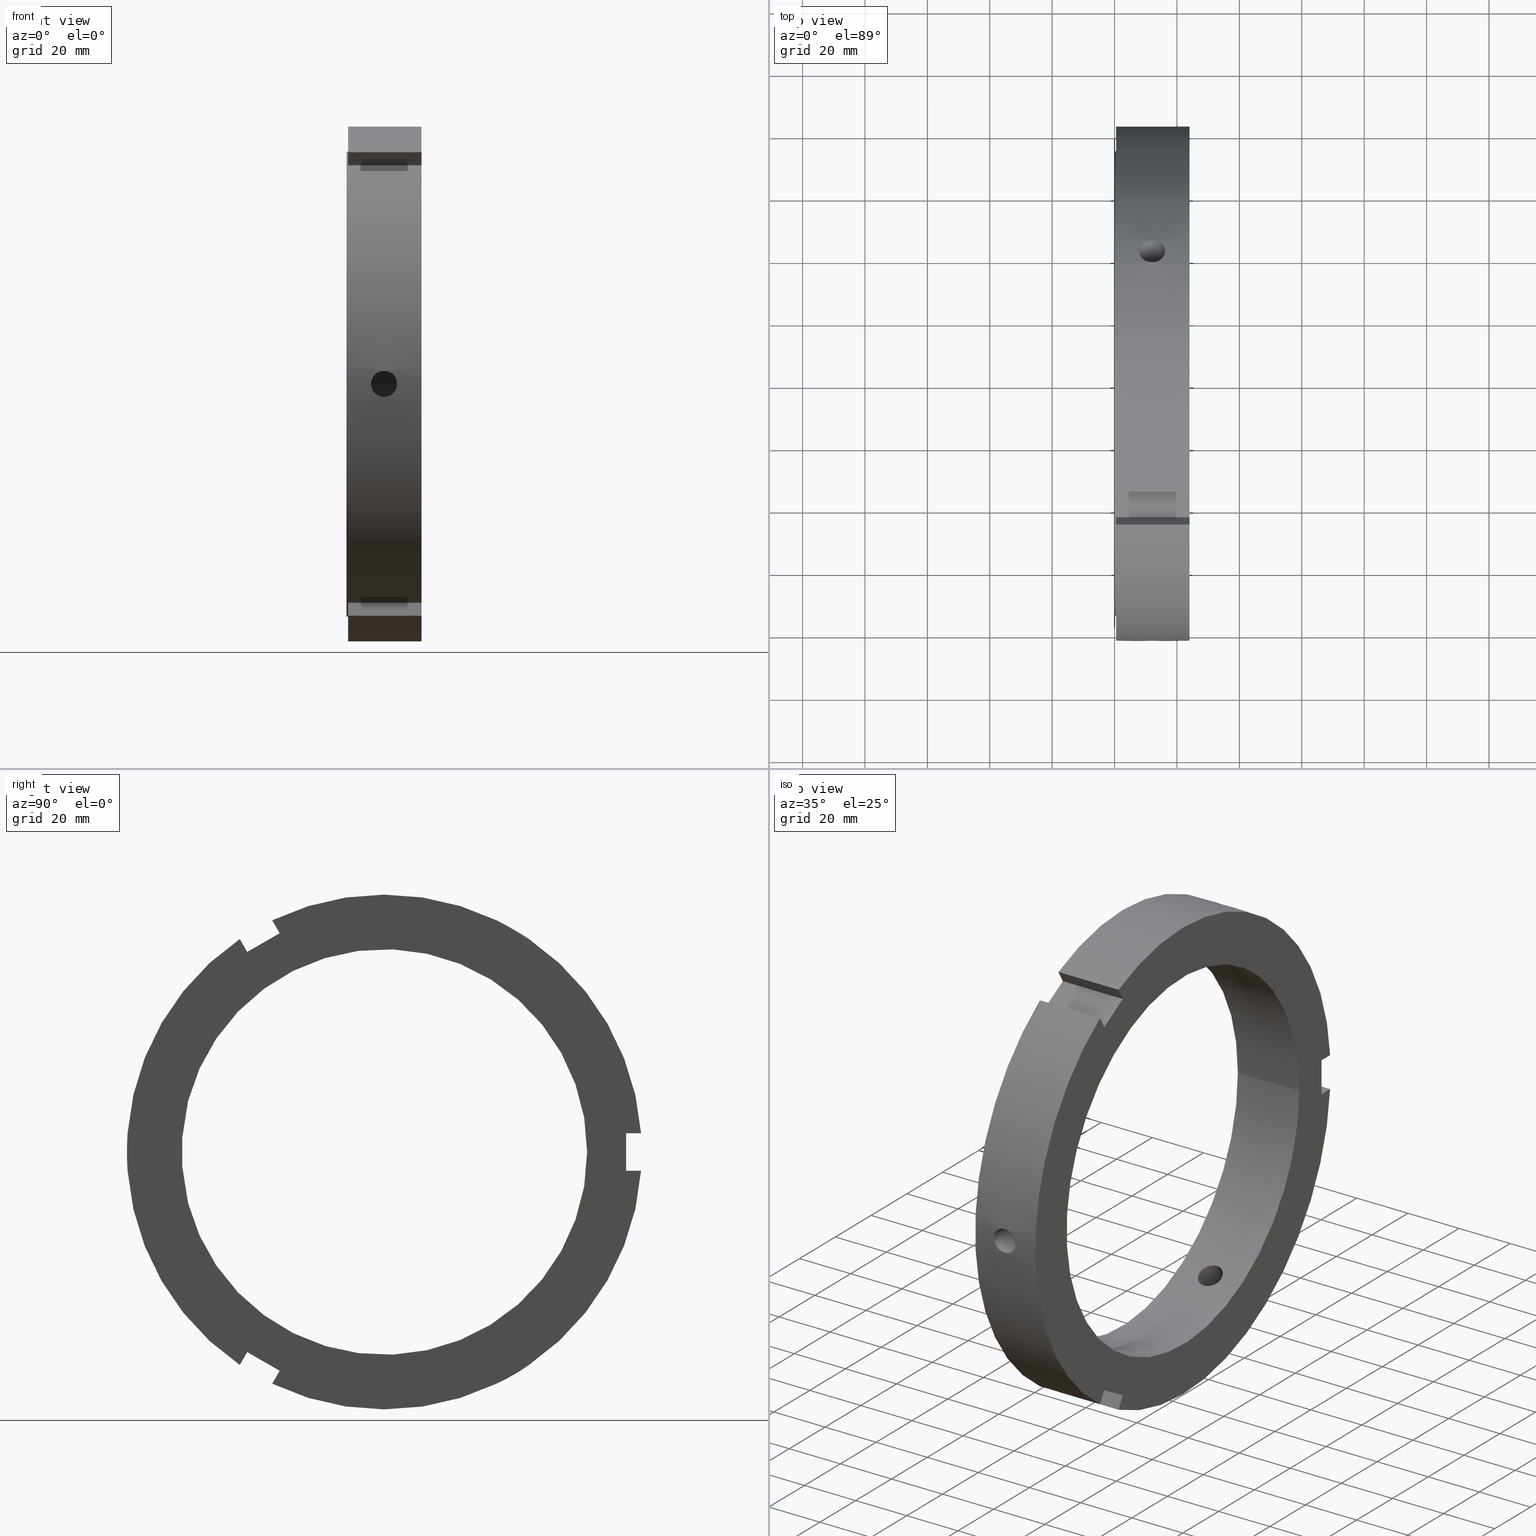
[diagram: canonical four-view strip — front | top / right | iso, engineering-drawing reading convention]
A machine part, canonical four-view strip (front | top / right | iso — engineering-drawing reading convention). The complete STEP part file that produces these views, byte-faithful:
ISO-10303-21;
HEADER;
/****************************************************************
 * Generated by software with PDE/Lib inside                    *
 * PDElib Version v51a, created Thu 01/14/2010                  *
 * ITI Transcendata (http://www.transcendata.com/)              *
 ****************************************************************/
FILE_DESCRIPTION((''),'2;1');
FILE_NAME('\\\\CAD-SVN\\cad-svn\\\X2\628088538AB2\X0\\\FKD\X2\88FD4F5C\X0\SP\\\X2\90E854C130E930A430D630E930EA\X0\\\HP \X2\30A230C330D730C730FC30C87528\X0\CAD\X2\30C730FC30BFFF0867007D42FF09\X0\\\3D data\\ZMT\\FKD ZMT130.stp','2014-07-16T14:51:30',('fkd-ct1n'),(''),'Autodesk Inventor 2011','Autodesk Inventor 2011','');
FILE_SCHEMA(('AUTOMOTIVE_DESIGN { 1 0 10303 214 1 1 1 1 }'));
ENDSEC;
DATA;
#5=APPLICATION_CONTEXT('automotive design');
#6=APPLICATION_PROTOCOL_DEFINITION('International Standard','automotive_design',2001,#5);
#7=PRODUCT_CONTEXT('',#5,'mechanical');
#8=PRODUCT('FKD ZMT130','FKD ZMT130',$,(#7));
#9=PRODUCT_RELATED_PRODUCT_CATEGORY('part',$,(#8));
#10=PRODUCT_DEFINITION_FORMATION('',$,#8);
#11=PRODUCT_DEFINITION_CONTEXT('part definition',#5,'design');
#12=PRODUCT_DEFINITION('',$,#10,#11);
#18=(NAMED_UNIT(*)PLANE_ANGLE_UNIT()SI_UNIT($,.RADIAN.));
#19=DIMENSIONAL_EXPONENTS(0.0,0.0,0.0,0.0,0.0,0.0,0.0);
#20=PLANE_ANGLE_MEASURE_WITH_UNIT(PLANE_ANGLE_MEASURE(0.017453292500000),#18);
#24=(CONVERSION_BASED_UNIT('DEGREE',#20)NAMED_UNIT(#19)PLANE_ANGLE_UNIT());
#28=(NAMED_UNIT(*)SI_UNIT($,.STERADIAN.)SOLID_ANGLE_UNIT());
#32=(LENGTH_UNIT()NAMED_UNIT(*)SI_UNIT(.MILLI.,.METRE.));
#34=UNCERTAINTY_MEASURE_WITH_UNIT(LENGTH_MEASURE(0.010000000000000),#32,'DISTANCE_ACCURACY_VALUE','');
#36=(GEOMETRIC_REPRESENTATION_CONTEXT(3)GLOBAL_UNCERTAINTY_ASSIGNED_CONTEXT((#34))GLOBAL_UNIT_ASSIGNED_CONTEXT((#24,#28,#32))REPRESENTATION_CONTEXT('None','None'));
#37=AXIS2_PLACEMENT_3D('',#38,#39,#40);
#38=CARTESIAN_POINT('',(0.0,0.0,0.0));
#39=DIRECTION('',(0.0,0.0,1.0));
#40=DIRECTION('',(1.0,0.0,0.0));
#41=SHAPE_REPRESENTATION('',(#37),#36);
#42=PRODUCT_DEFINITION_SHAPE('','',#12);
#43=SHAPE_DEFINITION_REPRESENTATION(#42,#41);
#49=(NAMED_UNIT(*)PLANE_ANGLE_UNIT()SI_UNIT($,.RADIAN.));
#50=DIMENSIONAL_EXPONENTS(0.0,0.0,0.0,0.0,0.0,0.0,0.0);
#51=PLANE_ANGLE_MEASURE_WITH_UNIT(PLANE_ANGLE_MEASURE(0.017453292500000),#49);
#55=(CONVERSION_BASED_UNIT('DEGREE',#51)NAMED_UNIT(#50)PLANE_ANGLE_UNIT());
#59=(NAMED_UNIT(*)SI_UNIT($,.STERADIAN.)SOLID_ANGLE_UNIT());
#63=(LENGTH_UNIT()NAMED_UNIT(*)SI_UNIT(.MILLI.,.METRE.));
#65=UNCERTAINTY_MEASURE_WITH_UNIT(LENGTH_MEASURE(0.000001000000000),#63,'DISTANCE_ACCURACY_VALUE','');
#67=(GEOMETRIC_REPRESENTATION_CONTEXT(3)GLOBAL_UNCERTAINTY_ASSIGNED_CONTEXT((#65))GLOBAL_UNIT_ASSIGNED_CONTEXT((#55,#59,#63))REPRESENTATION_CONTEXT('','3D'));
#68=CARTESIAN_POINT('',(23.999999999999986,-43.946152422706668,-64.116968793293978));
#69=DIRECTION('',(0.0,-0.866025403784438,0.500000000000001));
#70=DIRECTION('',(-1.0,0.0,0.0));
#71=AXIS2_PLACEMENT_3D('',#68,#69,#70);
#72=PLANE('',#71);
#73=CARTESIAN_POINT('',(0.499999999999976,-43.946152422706668,-64.116968793293978));
#74=VERTEX_POINT('',#73);
#75=CARTESIAN_POINT('',(0.499999999999976,-46.336916878414101,-68.257894299509005));
#76=VERTEX_POINT('',#75);
#77=CARTESIAN_POINT('',(0.499999999999976,-43.946152422706668,-64.116968793293992));
#78=DIRECTION('',(0.0,-0.500000000000002,-0.866025403784437));
#79=VECTOR('',#78,4.781528911414873);
#80=LINE('',#77,#79);
#81=EDGE_CURVE('',#74,#76,#80,.T.);
#82=ORIENTED_EDGE('',*,*,#81,.F.);
#83=CARTESIAN_POINT('',(23.999999999999986,-43.946152422706668,-64.116968793293978));
#84=VERTEX_POINT('',#83);
#85=CARTESIAN_POINT('',(23.999999999999986,-43.946152422706668,-64.116968793293978));
#86=DIRECTION('',(-1.0,0.0,0.0));
#87=VECTOR('',#86,23.500000000000011);
#88=LINE('',#85,#87);
#89=EDGE_CURVE('',#84,#74,#88,.T.);
#90=ORIENTED_EDGE('',*,*,#89,.F.);
#91=CARTESIAN_POINT('',(23.999999999999986,-46.336916878414101,-68.257894299509005));
#92=VERTEX_POINT('',#91);
#93=CARTESIAN_POINT('',(23.999999999999986,-46.336916878414115,-68.257894299509005));
#94=DIRECTION('',(0.0,0.500000000000000,0.866025403784439));
#95=VECTOR('',#94,4.781528911414866);
#96=LINE('',#93,#95);
#97=EDGE_CURVE('',#92,#84,#96,.T.);
#98=ORIENTED_EDGE('',*,*,#97,.F.);
#99=CARTESIAN_POINT('',(0.499999999999975,-46.336916878414094,-68.257894299508990));
#100=DIRECTION('',(1.0,0.0,0.0));
#101=VECTOR('',#100,23.500000000000011);
#102=LINE('',#99,#101);
#103=EDGE_CURVE('',#76,#92,#102,.T.);
#104=ORIENTED_EDGE('',*,*,#103,.F.);
#105=EDGE_LOOP('',(#82,#90,#98,#104));
#106=FACE_OUTER_BOUND('',#105,.T.);
#107=ADVANCED_FACE('',(#106),#72,.F.);
#108=CARTESIAN_POINT('',(23.999999999999986,-36.053847577293411,-74.447095812216176));
#109=DIRECTION('',(0.0,0.866025403784438,-0.500000000000001));
#110=DIRECTION('',(1.0,0.0,0.0));
#111=AXIS2_PLACEMENT_3D('',#108,#109,#110);
#112=PLANE('',#111);
#113=CARTESIAN_POINT('',(0.499999999999976,-35.944612033000844,-74.257894299508990));
#114=VERTEX_POINT('',#113);
#115=CARTESIAN_POINT('',(0.499999999999976,-33.553847577293411,-70.116968793293992));
#116=VERTEX_POINT('',#115);
#117=CARTESIAN_POINT('',(0.499999999999976,-35.944612033000851,-74.257894299509019));
#118=DIRECTION('',(0.0,0.500000000000000,0.866025403784438));
#119=VECTOR('',#118,4.781528911414850);
#120=LINE('',#117,#119);
#121=EDGE_CURVE('',#114,#116,#120,.T.);
#122=ORIENTED_EDGE('',*,*,#121,.F.);
#123=CARTESIAN_POINT('',(23.999999999999986,-35.944612033000844,-74.257894299508990));
#124=VERTEX_POINT('',#123);
#125=CARTESIAN_POINT('',(23.999999999999986,-35.944612033000830,-74.257894299508990));
#126=DIRECTION('',(-1.0,0.0,0.0));
#127=VECTOR('',#126,23.500000000000011);
#128=LINE('',#125,#127);
#129=EDGE_CURVE('',#124,#114,#128,.T.);
#130=ORIENTED_EDGE('',*,*,#129,.F.);
#131=CARTESIAN_POINT('',(23.999999999999986,-33.553847577293411,-70.116968793293992));
#132=VERTEX_POINT('',#131);
#133=CARTESIAN_POINT('',(23.999999999999986,-33.553847577293418,-70.116968793294006));
#134=DIRECTION('',(0.0,-0.500000000000001,-0.866025403784438));
#135=VECTOR('',#134,4.781528911414854);
#136=LINE('',#133,#135);
#137=EDGE_CURVE('',#132,#124,#136,.T.);
#138=ORIENTED_EDGE('',*,*,#137,.F.);
#139=CARTESIAN_POINT('',(23.999999999999986,-33.553847577293411,-70.116968793293992));
#140=DIRECTION('',(-1.0,0.0,0.0));
#141=VECTOR('',#140,23.500000000000011);
#142=LINE('',#139,#141);
#143=EDGE_CURVE('',#132,#116,#142,.T.);
#144=ORIENTED_EDGE('',*,*,#143,.T.);
#145=EDGE_LOOP('',(#122,#130,#138,#144));
#146=FACE_OUTER_BOUND('',#145,.T.);
#147=ADVANCED_FACE('',(#146),#112,.F.);
#148=CARTESIAN_POINT('',(23.999999999999986,-33.553847577293411,-70.116968793293992));
#149=DIRECTION('',(0.0,0.500000000000001,0.866025403784438));
#150=DIRECTION('',(0.0,-0.866025403784438,0.500000000000000));
#151=AXIS2_PLACEMENT_3D('',#148,#149,#150);
#152=PLANE('',#151);
#153=CARTESIAN_POINT('',(0.499999999999976,-33.553847577293432,-70.116968793294006));
#154=DIRECTION('',(0.0,-0.866025403784439,0.500000000000000));
#155=VECTOR('',#154,12.0);
#156=LINE('',#153,#155);
#157=EDGE_CURVE('',#116,#74,#156,.T.);
#158=ORIENTED_EDGE('',*,*,#157,.F.);
#159=ORIENTED_EDGE('',*,*,#143,.F.);
#160=CARTESIAN_POINT('',(23.999999999999986,-43.946152422706689,-64.116968793294006));
#161=DIRECTION('',(0.0,0.866025403784439,-0.500000000000000));
#162=VECTOR('',#161,12.0);
#163=LINE('',#160,#162);
#164=EDGE_CURVE('',#84,#132,#163,.T.);
#165=ORIENTED_EDGE('',*,*,#164,.F.);
#166=ORIENTED_EDGE('',*,*,#89,.T.);
#167=EDGE_LOOP('',(#158,#159,#165,#166));
#168=FACE_OUTER_BOUND('',#167,.T.);
#169=ADVANCED_FACE('',(#168),#152,.F.);
#170=CARTESIAN_POINT('',(11.999999999999984,117.211296672274240,203.015921057407670));
#171=DIRECTION('',(0.0,-0.500000000000001,-0.866025403784438));
#172=DIRECTION('',(-1.0,0.0,0.0));
#173=AXIS2_PLACEMENT_3D('',#170,#171,#172);
#174=CYLINDRICAL_SURFACE('',#173,4.188000000000000);
#175=CARTESIAN_POINT('',(11.999999999999984,44.823730578711157,69.260978747106350));
#176=VERTEX_POINT('',#175);
#177=CARTESIAN_POINT('',(11.999999999999984,44.823730578711121,69.260978747106350));
#178=CARTESIAN_POINT('',(12.525951644810846,44.823730578711121,69.260978747106350));
#179=CARTESIAN_POINT('',(13.086898726166433,44.735462369711897,69.318353854732237));
#180=CARTESIAN_POINT('',(14.118708632293300,44.375332131296972,69.549447681113207));
#181=CARTESIAN_POINT('',(14.589579118633827,44.103329934539879,69.722913668427026));
#182=CARTESIAN_POINT('',(15.333147197132220,43.472734998872212,70.117827357851780));
#183=CARTESIAN_POINT('',(15.655441065487318,43.072057589223803,70.365574775678738));
#184=CARTESIAN_POINT('',(16.082869968049618,42.188508749622009,70.898843347142503));
#185=CARTESIAN_POINT('',(16.187999999999981,41.705487383327515,71.184120048839560));
#186=CARTESIAN_POINT('',(16.187999999999988,40.794512616672513,71.710071575592764));
#187=CARTESIAN_POINT('',(16.082869968049621,40.305945062747782,71.985741998525967));
#188=CARTESIAN_POINT('',(15.655441065487326,39.402346513019424,72.484283453373493));
#189=CARTESIAN_POINT('',(15.333147197132224,38.987452250635101,72.707406559938079));
#190=CARTESIAN_POINT('',(14.589579118633829,38.330149495457178,73.056060949011723));
#191=CARTESIAN_POINT('',(14.118708632293306,38.043922445372289,73.204888767631644));
#192=CARTESIAN_POINT('',(13.086898726166442,37.663724201861150,73.401223789579433));
#193=CARTESIAN_POINT('',(12.525951644810846,37.569901796612655,73.448978747106310));
#194=CARTESIAN_POINT('',(11.474048355189122,37.569901796612655,73.448978747106310));
#195=CARTESIAN_POINT('',(10.913101273833526,37.663724201861150,73.401223789579433));
#196=CARTESIAN_POINT('',(9.881291367706663,38.043922445372289,73.204888767631644));
#197=CARTESIAN_POINT('',(9.410420881366141,38.330149495457178,73.056060949011723));
#198=CARTESIAN_POINT('',(8.666852802867744,38.987452250635101,72.707406559938079));
#199=CARTESIAN_POINT('',(8.344558934512644,39.402346513019424,72.484283453373493));
#200=CARTESIAN_POINT('',(7.917130031950346,40.305945062747782,71.985741998525967));
#201=CARTESIAN_POINT('',(7.811999999999982,40.794512616672513,71.710071575592764));
#202=CARTESIAN_POINT('',(7.811999999999985,41.705487383327515,71.184120048839560));
#203=CARTESIAN_POINT('',(7.917130031950349,42.188508749622009,70.898843347142503));
#204=CARTESIAN_POINT('',(8.344558934512648,43.072057589223803,70.365574775678738));
#205=CARTESIAN_POINT('',(8.666852802867751,43.472734998872212,70.117827357851780));
#206=CARTESIAN_POINT('',(9.410420881366143,44.103329934539879,69.722913668427026));
#207=CARTESIAN_POINT('',(9.881291367706670,44.375332131296972,69.549447681113207));
#208=CARTESIAN_POINT('',(10.913101273833535,44.735462369711897,69.318353854732237));
#209=CARTESIAN_POINT('',(11.474048355189119,44.823730578711114,69.260978747106350));
#210=CARTESIAN_POINT('',(11.999999999999982,44.823730578711114,69.260978747106350));
#211=B_SPLINE_CURVE_WITH_KNOTS('',3,(#177,#178,#179,#180,#181,#182,#183,#184,#185,#186,#187,#188,#189,#190,#191,#192,#193,#194,#195,#196,#197,#198,#199,#200,#201,#202,#203,#204,#205,#206,#207,#208,#209,#210),.UNSPECIFIED.,.T.,.U.,(4,2,2,2,2,2,2,2,2,2,2,2,2,2,2,2,4),(0.0,0.157785493443259,0.315570986886517,0.473356444912484,0.631141902938451,0.788927360964419,0.946712818990387,1.104498312433646,1.262283805876904,1.420069299320163,1.577854792763421,1.735640250789389,1.893425708815357,2.051211166841324,2.208996624867291,2.366782118310550,2.524567611753808),.UNSPECIFIED.);
#212=EDGE_CURVE('',#176,#176,#211,.T.);
#213=ORIENTED_EDGE('',*,*,#212,.F.);
#214=EDGE_LOOP('',(#213));
#215=FACE_OUTER_BOUND('',#214,.T.);
#216=CARTESIAN_POINT('',(11.999999999999984,36.059385218909412,54.080687288849219));
#217=VERTEX_POINT('',#216);
#218=CARTESIAN_POINT('',(11.999999999999986,36.059385218909398,54.080687288849234));
#219=CARTESIAN_POINT('',(11.473988907387904,36.059385218909398,54.080687288849234));
#220=CARTESIAN_POINT('',(10.913016296673286,35.971848282437129,54.139375422463999));
#221=CARTESIAN_POINT('',(9.881222806530774,35.614413618888193,54.375172482390006));
#222=CARTESIAN_POINT('',(9.410389551678808,35.344338833655357,54.551958718026079));
#223=CARTESIAN_POINT('',(8.666884265975028,34.717398813313665,54.953077320903560));
#224=CARTESIAN_POINT('',(8.344599357334994,34.318668972562861,55.204123682125328));
#225=CARTESIAN_POINT('',(7.917153195129436,33.437835057425183,55.742062199292945));
#226=CARTESIAN_POINT('',(7.811999999999985,32.955538703123054,56.028645853114099));
#227=CARTESIAN_POINT('',(7.811999999999983,32.044461296876968,56.554656638862880));
#228=CARTESIAN_POINT('',(7.917153195129431,31.555124395207386,56.829045706930557));
#229=CARTESIAN_POINT('',(8.344599357334989,30.648839016097259,57.322900995370894));
#230=CARTESIAN_POINT('',(8.666884265975025,30.232061569376182,57.542687986097135));
#231=CARTESIAN_POINT('',(9.410389551678804,29.571212659182908,57.885074668923423));
#232=CARTESIAN_POINT('',(9.881222806530767,29.283073895466238,58.030573176038658));
#233=CARTESIAN_POINT('',(10.913016296673280,28.900150319658160,58.222222144902176));
#234=CARTESIAN_POINT('',(11.473988907387902,28.805556436810946,58.268687288849222));
#235=CARTESIAN_POINT('',(12.526011092612066,28.805556436810946,58.268687288849222));
#236=CARTESIAN_POINT('',(13.086983703326688,28.900150319658160,58.222222144902176));
#237=CARTESIAN_POINT('',(14.118777193469201,29.283073895466238,58.030573176038658));
#238=CARTESIAN_POINT('',(14.589610448321164,29.571212659182908,57.885074668923423));
#239=CARTESIAN_POINT('',(15.333115734024943,30.232061569376182,57.542687986097135));
#240=CARTESIAN_POINT('',(15.655400642664976,30.648839016097263,57.322900995370887));
#241=CARTESIAN_POINT('',(16.082846804870538,31.555124395207397,56.829045706930543));
#242=CARTESIAN_POINT('',(16.187999999999985,32.044461296876968,56.554656638862880));
#243=CARTESIAN_POINT('',(16.187999999999985,32.955538703123054,56.028645853114099));
#244=CARTESIAN_POINT('',(16.082846804870535,33.437835057425190,55.742062199292945));
#245=CARTESIAN_POINT('',(15.655400642664972,34.318668972562875,55.204123682125328));
#246=CARTESIAN_POINT('',(15.333115734024940,34.717398813313672,54.953077320903560));
#247=CARTESIAN_POINT('',(14.589610448321162,35.344338833655357,54.551958718026071));
#248=CARTESIAN_POINT('',(14.118777193469196,35.614413618888193,54.375172482390013));
#249=CARTESIAN_POINT('',(13.086983703326682,35.971848282437129,54.139375422464006));
#250=CARTESIAN_POINT('',(12.526011092612068,36.059385218909398,54.080687288849234));
#251=CARTESIAN_POINT('',(11.999999999999986,36.059385218909398,54.080687288849234));
#252=B_SPLINE_CURVE_WITH_KNOTS('',3,(#218,#219,#220,#221,#222,#223,#224,#225,#226,#227,#228,#229,#230,#231,#232,#233,#234,#235,#236,#237,#238,#239,#240,#241,#242,#243,#244,#245,#246,#247,#248,#249,#250,#251),.UNSPECIFIED.,.T.,.U.,(4,2,2,2,2,2,2,2,2,2,2,2,2,2,2,2,4),(0.0,0.157803327783624,0.315606655567249,0.473409891291878,0.631213127016507,0.789016362741137,0.946819598465767,1.104622926249391,1.262426254033016,1.420229581816640,1.578032909600265,1.735836145324894,1.893639381049524,2.051442616774153,2.209245852498782,2.367049180282407,2.524852508066031),.UNSPECIFIED.);
#253=EDGE_CURVE('',#217,#217,#252,.T.);
#254=ORIENTED_EDGE('',*,*,#253,.F.);
#255=EDGE_LOOP('',(#254));
#256=FACE_BOUND('',#255,.T.);
#257=ADVANCED_FACE('',(#215,#256),#174,.F.);
#258=CARTESIAN_POINT('',(23.999999999999986,-33.553847577293354,70.116968793294006));
#259=DIRECTION('',(0.0,0.866025403784439,0.500000000000000));
#260=DIRECTION('',(-1.0,0.0,0.0));
#261=AXIS2_PLACEMENT_3D('',#258,#259,#260);
#262=PLANE('',#261);
#263=CARTESIAN_POINT('',(0.499999999999976,-33.553847577293354,70.116968793294006));
#264=VERTEX_POINT('',#263);
#265=CARTESIAN_POINT('',(0.499999999999976,-35.944612033000780,74.257894299509019));
#266=VERTEX_POINT('',#265);
#267=CARTESIAN_POINT('',(0.499999999999980,-33.553847577293361,70.116968793294021));
#268=DIRECTION('',(0.0,-0.500000000000000,0.866025403784438));
#269=VECTOR('',#268,4.781528911414850);
#270=LINE('',#267,#269);
#271=EDGE_CURVE('',#264,#266,#270,.T.);
#272=ORIENTED_EDGE('',*,*,#271,.F.);
#273=CARTESIAN_POINT('',(23.999999999999986,-33.553847577293354,70.116968793294006));
#274=VERTEX_POINT('',#273);
#275=CARTESIAN_POINT('',(23.999999999999986,-33.553847577293354,70.116968793294006));
#276=DIRECTION('',(-1.0,0.0,0.0));
#277=VECTOR('',#276,23.500000000000011);
#278=LINE('',#275,#277);
#279=EDGE_CURVE('',#274,#264,#278,.T.);
#280=ORIENTED_EDGE('',*,*,#279,.F.);
#281=CARTESIAN_POINT('',(23.999999999999986,-35.944612033000780,74.257894299509019));
#282=VERTEX_POINT('',#281);
#283=CARTESIAN_POINT('',(23.999999999999986,-35.944612033000787,74.257894299509033));
#284=DIRECTION('',(0.0,0.500000000000000,-0.866025403784438));
#285=VECTOR('',#284,4.781528911414850);
#286=LINE('',#283,#285);
#287=EDGE_CURVE('',#282,#274,#286,.T.);
#288=ORIENTED_EDGE('',*,*,#287,.F.);
#289=CARTESIAN_POINT('',(0.499999999999975,-35.944612033000773,74.257894299509019));
#290=DIRECTION('',(1.0,0.0,0.0));
#291=VECTOR('',#290,23.500000000000011);
#292=LINE('',#289,#291);
#293=EDGE_CURVE('',#266,#282,#292,.T.);
#294=ORIENTED_EDGE('',*,*,#293,.F.);
#295=EDGE_LOOP('',(#272,#280,#288,#294));
#296=FACE_OUTER_BOUND('',#295,.T.);
#297=ADVANCED_FACE('',(#296),#262,.F.);
#298=CARTESIAN_POINT('',(23.999999999999986,-46.446152422706611,68.447095812216205));
#299=DIRECTION('',(0.0,-0.866025403784439,-0.500000000000000));
#300=DIRECTION('',(1.0,0.0,0.0));
#301=AXIS2_PLACEMENT_3D('',#298,#299,#300);
#302=PLANE('',#301);
#303=CARTESIAN_POINT('',(0.499999999999976,-46.336916878414044,68.257894299509033));
#304=VERTEX_POINT('',#303);
#305=CARTESIAN_POINT('',(0.499999999999976,-43.946152422706618,64.116968793294006));
#306=VERTEX_POINT('',#305);
#307=CARTESIAN_POINT('',(0.499999999999980,-46.336916878414051,68.257894299509033));
#308=DIRECTION('',(0.0,0.499999999999999,-0.866025403784439));
#309=VECTOR('',#308,4.781528911414847);
#310=LINE('',#307,#309);
#311=EDGE_CURVE('',#304,#306,#310,.T.);
#312=ORIENTED_EDGE('',*,*,#311,.F.);
#313=CARTESIAN_POINT('',(23.999999999999986,-46.336916878414044,68.257894299509033));
#314=VERTEX_POINT('',#313);
#315=CARTESIAN_POINT('',(23.999999999999986,-46.336916878414044,68.257894299509033));
#316=DIRECTION('',(-1.0,0.0,0.0));
#317=VECTOR('',#316,23.500000000000011);
#318=LINE('',#315,#317);
#319=EDGE_CURVE('',#314,#304,#318,.T.);
#320=ORIENTED_EDGE('',*,*,#319,.F.);
#321=CARTESIAN_POINT('',(23.999999999999986,-43.946152422706618,64.116968793294006));
#322=VERTEX_POINT('',#321);
#323=CARTESIAN_POINT('',(23.999999999999986,-43.946152422706618,64.116968793294021));
#324=DIRECTION('',(0.0,-0.500000000000000,0.866025403784438));
#325=VECTOR('',#324,4.781528911414850);
#326=LINE('',#323,#325);
#327=EDGE_CURVE('',#322,#314,#326,.T.);
#328=ORIENTED_EDGE('',*,*,#327,.F.);
#329=CARTESIAN_POINT('',(23.999999999999986,-43.946152422706618,64.116968793294006));
#330=DIRECTION('',(-1.0,0.0,0.0));
#331=VECTOR('',#330,23.500000000000011);
#332=LINE('',#329,#331);
#333=EDGE_CURVE('',#322,#306,#332,.T.);
#334=ORIENTED_EDGE('',*,*,#333,.T.);
#335=EDGE_LOOP('',(#312,#320,#328,#334));
#336=FACE_OUTER_BOUND('',#335,.T.);
#337=ADVANCED_FACE('',(#336),#302,.F.);
#338=CARTESIAN_POINT('',(23.999999999999986,-43.946152422706618,64.116968793294006));
#339=DIRECTION('',(0.0,0.500000000000000,-0.866025403784439));
#340=DIRECTION('',(0.0,0.866025403784439,0.500000000000000));
#341=AXIS2_PLACEMENT_3D('',#338,#339,#340);
#342=PLANE('',#341);
#343=CARTESIAN_POINT('',(0.499999999999980,-43.946152422706632,64.116968793294006));
#344=DIRECTION('',(0.0,0.866025403784439,0.500000000000000));
#345=VECTOR('',#344,12.000000000000007);
#346=LINE('',#343,#345);
#347=EDGE_CURVE('',#306,#264,#346,.T.);
#348=ORIENTED_EDGE('',*,*,#347,.F.);
#349=ORIENTED_EDGE('',*,*,#333,.F.);
#350=CARTESIAN_POINT('',(23.999999999999986,-33.553847577293361,70.116968793294006));
#351=DIRECTION('',(0.0,-0.866025403784439,-0.500000000000000));
#352=VECTOR('',#351,12.0);
#353=LINE('',#350,#352);
#354=EDGE_CURVE('',#274,#322,#353,.T.);
#355=ORIENTED_EDGE('',*,*,#354,.F.);
#356=ORIENTED_EDGE('',*,*,#279,.T.);
#357=EDGE_LOOP('',(#348,#349,#355,#356));
#358=FACE_OUTER_BOUND('',#357,.T.);
#359=ADVANCED_FACE('',(#358),#342,.F.);
#360=CARTESIAN_POINT('',(11.999999999999984,117.211296672274100,-203.015921057407750));
#361=DIRECTION('',(0.0,-0.500000000000000,0.866025403784439));
#362=DIRECTION('',(-1.0,0.0,0.0));
#363=AXIS2_PLACEMENT_3D('',#360,#361,#362);
#364=CYLINDRICAL_SURFACE('',#363,4.188000000000000);
#365=CARTESIAN_POINT('',(11.999999999999984,37.569901796612641,-73.448978747106381));
#366=VERTEX_POINT('',#365);
#367=CARTESIAN_POINT('',(11.999999999999984,37.569901796612633,-73.448978747106366));
#368=CARTESIAN_POINT('',(12.525951644810846,37.569901796612633,-73.448978747106366));
#369=CARTESIAN_POINT('',(13.086898726166451,37.663724201861129,-73.401223789579447));
#370=CARTESIAN_POINT('',(14.118708632293316,38.043922445372267,-73.204888767631658));
#371=CARTESIAN_POINT('',(14.589579118633829,38.330149495457150,-73.056060949011709));
#372=CARTESIAN_POINT('',(15.333147197132222,38.987452250635073,-72.707406559938065));
#373=CARTESIAN_POINT('',(15.655441065487333,39.402346513019410,-72.484283453373507));
#374=CARTESIAN_POINT('',(16.082869968049625,40.305945062747753,-71.985741998525981));
#375=CARTESIAN_POINT('',(16.187999999999988,40.794512616672485,-71.710071575592792));
#376=CARTESIAN_POINT('',(16.187999999999981,41.705487383327494,-71.184120048839574));
#377=CARTESIAN_POINT('',(16.082869968049614,42.188508749621988,-70.898843347142517));
#378=CARTESIAN_POINT('',(15.655441065487315,43.072057589223789,-70.365574775678766));
#379=CARTESIAN_POINT('',(15.333147197132222,43.472734998872170,-70.117827357851780));
#380=CARTESIAN_POINT('',(14.589579118633827,44.103329934539843,-69.722913668427026));
#381=CARTESIAN_POINT('',(14.118708632293306,44.375332131296958,-69.549447681113236));
#382=CARTESIAN_POINT('',(13.086898726166440,44.735462369711883,-69.318353854732266));
#383=CARTESIAN_POINT('',(12.525951644810844,44.823730578711086,-69.260978747106378));
#384=CARTESIAN_POINT('',(11.474048355189122,44.823730578711086,-69.260978747106378));
#385=CARTESIAN_POINT('',(10.913101273833519,44.735462369711883,-69.318353854732266));
#386=CARTESIAN_POINT('',(9.881291367706655,44.375332131296958,-69.549447681113236));
#387=CARTESIAN_POINT('',(9.410420881366139,44.103329934539843,-69.722913668427069));
#388=CARTESIAN_POINT('',(8.666852802867748,43.472734998872170,-70.117827357851823));
#389=CARTESIAN_POINT('',(8.344558934512650,43.072057589223782,-70.365574775678766));
#390=CARTESIAN_POINT('',(7.917130031950350,42.188508749621995,-70.898843347142517));
#391=CARTESIAN_POINT('',(7.811999999999985,41.705487383327494,-71.184120048839574));
#392=CARTESIAN_POINT('',(7.811999999999982,40.794512616672485,-71.710071575592792));
#393=CARTESIAN_POINT('',(7.917130031950341,40.305945062747753,-71.985741998525981));
#394=CARTESIAN_POINT('',(8.344558934512634,39.402346513019410,-72.484283453373507));
#395=CARTESIAN_POINT('',(8.666852802867748,38.987452250635073,-72.707406559938065));
#396=CARTESIAN_POINT('',(9.410420881366138,38.330149495457150,-73.056060949011709));
#397=CARTESIAN_POINT('',(9.881291367706648,38.043922445372267,-73.204888767631658));
#398=CARTESIAN_POINT('',(10.913101273833517,37.663724201861122,-73.401223789579447));
#399=CARTESIAN_POINT('',(11.474048355189122,37.569901796612633,-73.448978747106366));
#400=CARTESIAN_POINT('',(11.999999999999984,37.569901796612633,-73.448978747106366));
#401=B_SPLINE_CURVE_WITH_KNOTS('',3,(#367,#368,#369,#370,#371,#372,#373,#374,#375,#376,#377,#378,#379,#380,#381,#382,#383,#384,#385,#386,#387,#388,#389,#390,#391,#392,#393,#394,#395,#396,#397,#398,#399,#400),.UNSPECIFIED.,.T.,.U.,(4,2,2,2,2,2,2,2,2,2,2,2,2,2,2,2,4),(0.0,0.157785493443259,0.315570986886518,0.473356444912485,0.631141902938452,0.788927360964419,0.946712818990387,1.104498312433645,1.262283805876903,1.420069299320161,1.577854792763420,1.735640250789386,1.893425708815353,2.051211166841319,2.208996624867286,2.366782118310545,2.524567611753804),.UNSPECIFIED.);
#402=EDGE_CURVE('',#366,#366,#401,.T.);
#403=ORIENTED_EDGE('',*,*,#402,.F.);
#404=EDGE_LOOP('',(#403));
#405=FACE_OUTER_BOUND('',#404,.T.);
#406=CARTESIAN_POINT('',(11.999999999999984,28.805556436810917,-58.268687288849243));
#407=VERTEX_POINT('',#406);
#408=CARTESIAN_POINT('',(11.999999999999984,28.805556436810917,-58.268687288849236));
#409=CARTESIAN_POINT('',(11.473988907387902,28.805556436810917,-58.268687288849236));
#410=CARTESIAN_POINT('',(10.913016296673279,28.900150319658135,-58.222222144902183));
#411=CARTESIAN_POINT('',(9.881222806530763,29.283073895466213,-58.030573176038665));
#412=CARTESIAN_POINT('',(9.410389551678806,29.571212659182898,-57.885074668923409));
#413=CARTESIAN_POINT('',(8.666884265975032,30.232061569376167,-57.542687986097114));
#414=CARTESIAN_POINT('',(8.344599357334984,30.648839016097259,-57.322900995370894));
#415=CARTESIAN_POINT('',(7.917153195129431,31.555124395207379,-56.829045706930572));
#416=CARTESIAN_POINT('',(7.811999999999983,32.044461296876946,-56.554656638862895));
#417=CARTESIAN_POINT('',(7.811999999999983,32.955538703123032,-56.028645853114121));
#418=CARTESIAN_POINT('',(7.917153195129431,33.437835057425161,-55.742062199292953));
#419=CARTESIAN_POINT('',(8.344599357334989,34.318668972562847,-55.204123682125342));
#420=CARTESIAN_POINT('',(8.666884265975028,34.717398813313643,-54.953077320903589));
#421=CARTESIAN_POINT('',(9.410389551678804,35.344338833655335,-54.551958718026100));
#422=CARTESIAN_POINT('',(9.881222806530767,35.614413618888179,-54.375172482390035));
#423=CARTESIAN_POINT('',(10.913016296673280,35.971848282437115,-54.139375422464020));
#424=CARTESIAN_POINT('',(11.473988907387902,36.059385218909355,-54.080687288849241));
#425=CARTESIAN_POINT('',(12.526011092612066,36.059385218909355,-54.080687288849241));
#426=CARTESIAN_POINT('',(13.086983703326688,35.971848282437115,-54.139375422464020));
#427=CARTESIAN_POINT('',(14.118777193469201,35.614413618888179,-54.375172482390035));
#428=CARTESIAN_POINT('',(14.589610448321162,35.344338833655335,-54.551958718026100));
#429=CARTESIAN_POINT('',(15.333115734024940,34.717398813313643,-54.953077320903589));
#430=CARTESIAN_POINT('',(15.655400642664979,34.318668972562847,-55.204123682125342));
#431=CARTESIAN_POINT('',(16.082846804870538,33.437835057425161,-55.742062199292953));
#432=CARTESIAN_POINT('',(16.187999999999985,32.955538703123032,-56.028645853114121));
#433=CARTESIAN_POINT('',(16.187999999999985,32.044461296876946,-56.554656638862895));
#434=CARTESIAN_POINT('',(16.082846804870538,31.555124395207375,-56.829045706930572));
#435=CARTESIAN_POINT('',(15.655400642664981,30.648839016097252,-57.322900995370901));
#436=CARTESIAN_POINT('',(15.333115734024938,30.232061569376157,-57.542687986097135));
#437=CARTESIAN_POINT('',(14.589610448321162,29.571212659182891,-57.885074668923423));
#438=CARTESIAN_POINT('',(14.118777193469201,29.283073895466210,-58.030573176038665));
#439=CARTESIAN_POINT('',(13.086983703326684,28.900150319658131,-58.222222144902183));
#440=CARTESIAN_POINT('',(12.526011092612066,28.805556436810917,-58.268687288849243));
#441=CARTESIAN_POINT('',(11.999999999999984,28.805556436810917,-58.268687288849243));
#442=B_SPLINE_CURVE_WITH_KNOTS('',3,(#408,#409,#410,#411,#412,#413,#414,#415,#416,#417,#418,#419,#420,#421,#422,#423,#424,#425,#426,#427,#428,#429,#430,#431,#432,#433,#434,#435,#436,#437,#438,#439,#440,#441),.UNSPECIFIED.,.T.,.U.,(4,2,2,2,2,2,2,2,2,2,2,2,2,2,2,2,4),(0.0,0.157803327783625,0.315606655567250,0.473409891291878,0.631213127016507,0.789016362741136,0.946819598465765,1.104622926249389,1.262426254033014,1.420229581816638,1.578032909600263,1.735836145324892,1.893639381049521,2.051442616774150,2.209245852498779,2.367049180282404,2.524852508066029),.UNSPECIFIED.);
#443=EDGE_CURVE('',#407,#407,#442,.T.);
#444=ORIENTED_EDGE('',*,*,#443,.F.);
#445=EDGE_LOOP('',(#444));
#446=FACE_BOUND('',#445,.T.);
#447=ADVANCED_FACE('',(#405,#446),#364,.F.);
#448=CARTESIAN_POINT('',(23.999999999999986,73.750000000000000,0.0));
#449=DIRECTION('',(1.0,0.0,0.0));
#450=DIRECTION('',(0.0,0.0,-1.0));
#451=AXIS2_PLACEMENT_3D('',#448,#449,#450);
#452=PLANE('',#451);
#453=ORIENTED_EDGE('',*,*,#97,.T.);
#454=ORIENTED_EDGE('',*,*,#164,.T.);
#455=ORIENTED_EDGE('',*,*,#137,.T.);
#456=CARTESIAN_POINT('',(23.999999999999986,82.281528911414853,-5.999999999999996));
#457=VERTEX_POINT('',#456);
#458=CARTESIAN_POINT('',(23.999999999999986,0.0,0.0));
#459=DIRECTION('',(1.0,0.0,0.0));
#460=DIRECTION('',(0.0,1.0,0.0));
#461=AXIS2_PLACEMENT_3D('',#458,#459,#460);
#462=CIRCLE('',#461,82.500000000000000);
#463=EDGE_CURVE('',#124,#457,#462,.T.);
#464=ORIENTED_EDGE('',*,*,#463,.T.);
#465=CARTESIAN_POINT('',(23.999999999999986,77.500000000000000,-5.999999999999996));
#466=VERTEX_POINT('',#465);
#467=CARTESIAN_POINT('',(23.999999999999986,82.281528911414853,-5.999999999999996));
#468=DIRECTION('',(0.0,-1.0,0.0));
#469=VECTOR('',#468,4.781528911414853);
#470=LINE('',#467,#469);
#471=EDGE_CURVE('',#457,#466,#470,.T.);
#472=ORIENTED_EDGE('',*,*,#471,.T.);
#473=CARTESIAN_POINT('',(23.999999999999986,77.500000000000000,5.999999999999996));
#474=VERTEX_POINT('',#473);
#475=CARTESIAN_POINT('',(23.999999999999986,77.500000000000000,-5.999999999999996));
#476=DIRECTION('',(0.0,0.0,1.0));
#477=VECTOR('',#476,11.999999999999993);
#478=LINE('',#475,#477);
#479=EDGE_CURVE('',#466,#474,#478,.T.);
#480=ORIENTED_EDGE('',*,*,#479,.T.);
#481=CARTESIAN_POINT('',(23.999999999999986,82.281528911414853,5.999999999999996));
#482=VERTEX_POINT('',#481);
#483=CARTESIAN_POINT('',(23.999999999999986,77.500000000000000,5.999999999999996));
#484=DIRECTION('',(0.0,1.0,0.0));
#485=VECTOR('',#484,4.781528911414853);
#486=LINE('',#483,#485);
#487=EDGE_CURVE('',#474,#482,#486,.T.);
#488=ORIENTED_EDGE('',*,*,#487,.T.);
#489=CARTESIAN_POINT('',(23.999999999999986,0.0,0.0));
#490=DIRECTION('',(1.0,0.0,0.0));
#491=DIRECTION('',(0.0,1.0,0.0));
#492=AXIS2_PLACEMENT_3D('',#489,#490,#491);
#493=CIRCLE('',#492,82.500000000000000);
#494=EDGE_CURVE('',#482,#282,#493,.T.);
#495=ORIENTED_EDGE('',*,*,#494,.T.);
#496=ORIENTED_EDGE('',*,*,#287,.T.);
#497=ORIENTED_EDGE('',*,*,#354,.T.);
#498=ORIENTED_EDGE('',*,*,#327,.T.);
#499=CARTESIAN_POINT('',(23.999999999999986,0.0,0.0));
#500=DIRECTION('',(1.0,0.0,0.0));
#501=DIRECTION('',(0.0,1.0,0.0));
#502=AXIS2_PLACEMENT_3D('',#499,#500,#501);
#503=CIRCLE('',#502,82.500000000000000);
#504=EDGE_CURVE('',#314,#92,#503,.T.);
#505=ORIENTED_EDGE('',*,*,#504,.T.);
#506=EDGE_LOOP('',(#453,#454,#455,#464,#472,#480,#488,#495,#496,#497,#498,#505));
#507=FACE_OUTER_BOUND('',#506,.T.);
#508=CARTESIAN_POINT('',(23.999999999999986,65.0,0.0));
#509=VERTEX_POINT('',#508);
#510=CARTESIAN_POINT('',(23.999999999999986,0.0,0.0));
#511=DIRECTION('',(1.0,0.0,0.0));
#512=DIRECTION('',(0.0,1.0,0.0));
#513=AXIS2_PLACEMENT_3D('',#510,#511,#512);
#514=CIRCLE('',#513,65.0);
#515=EDGE_CURVE('',#509,#509,#514,.T.);
#516=ORIENTED_EDGE('',*,*,#515,.F.);
#517=EDGE_LOOP('',(#516));
#518=FACE_BOUND('',#517,.T.);
#519=ADVANCED_FACE('',(#507,#518),#452,.T.);
#520=CARTESIAN_POINT('',(12.249999999999980,0.0,0.0));
#521=DIRECTION('',(1.0,0.0,0.0));
#522=DIRECTION('',(0.0,1.0,0.0));
#523=AXIS2_PLACEMENT_3D('',#520,#521,#522);
#524=CYLINDRICAL_SURFACE('',#523,82.500000000000000);
#525=ORIENTED_EDGE('',*,*,#293,.T.);
#526=ORIENTED_EDGE('',*,*,#494,.F.);
#527=CARTESIAN_POINT('',(0.499999999999976,82.281528911414853,5.999999999999996));
#528=VERTEX_POINT('',#527);
#529=CARTESIAN_POINT('',(23.999999999999986,82.281528911414853,5.999999999999996));
#530=DIRECTION('',(-1.0,0.0,0.0));
#531=VECTOR('',#530,23.500000000000011);
#532=LINE('',#529,#531);
#533=EDGE_CURVE('',#482,#528,#532,.T.);
#534=ORIENTED_EDGE('',*,*,#533,.T.);
#535=CARTESIAN_POINT('',(0.499999999999976,0.0,0.0));
#536=DIRECTION('',(1.0,0.0,0.0));
#537=DIRECTION('',(0.0,1.0,0.0));
#538=AXIS2_PLACEMENT_3D('',#535,#536,#537);
#539=CIRCLE('',#538,82.500000000000000);
#540=EDGE_CURVE('',#528,#266,#539,.T.);
#541=ORIENTED_EDGE('',*,*,#540,.T.);
#542=EDGE_LOOP('',(#525,#526,#534,#541));
#543=FACE_OUTER_BOUND('',#542,.T.);
#544=ORIENTED_EDGE('',*,*,#212,.T.);
#545=EDGE_LOOP('',(#544));
#546=FACE_BOUND('',#545,.T.);
#547=ADVANCED_FACE('',(#543,#546),#524,.T.);
#548=CARTESIAN_POINT('',(12.249999999999980,0.0,0.0));
#549=DIRECTION('',(1.0,0.0,0.0));
#550=DIRECTION('',(0.0,1.0,0.0));
#551=AXIS2_PLACEMENT_3D('',#548,#549,#550);
#552=CYLINDRICAL_SURFACE('',#551,82.500000000000000);
#553=ORIENTED_EDGE('',*,*,#129,.T.);
#554=CARTESIAN_POINT('',(0.499999999999976,82.281528911414853,-5.999999999999996));
#555=VERTEX_POINT('',#554);
#556=CARTESIAN_POINT('',(0.499999999999976,0.0,0.0));
#557=DIRECTION('',(1.0,0.0,0.0));
#558=DIRECTION('',(0.0,1.0,0.0));
#559=AXIS2_PLACEMENT_3D('',#556,#557,#558);
#560=CIRCLE('',#559,82.500000000000000);
#561=EDGE_CURVE('',#114,#555,#560,.T.);
#562=ORIENTED_EDGE('',*,*,#561,.T.);
#563=CARTESIAN_POINT('',(0.499999999999975,82.281528911414853,-5.999999999999996));
#564=DIRECTION('',(1.0,0.0,0.0));
#565=VECTOR('',#564,23.500000000000011);
#566=LINE('',#563,#565);
#567=EDGE_CURVE('',#555,#457,#566,.T.);
#568=ORIENTED_EDGE('',*,*,#567,.T.);
#569=ORIENTED_EDGE('',*,*,#463,.F.);
#570=EDGE_LOOP('',(#553,#562,#568,#569));
#571=FACE_OUTER_BOUND('',#570,.T.);
#572=ORIENTED_EDGE('',*,*,#402,.T.);
#573=EDGE_LOOP('',(#572));
#574=FACE_BOUND('',#573,.T.);
#575=ADVANCED_FACE('',(#571,#574),#552,.T.);
#576=CARTESIAN_POINT('',(12.249999999999980,0.0,0.0));
#577=DIRECTION('',(1.0,0.0,0.0));
#578=DIRECTION('',(0.0,1.0,0.0));
#579=AXIS2_PLACEMENT_3D('',#576,#577,#578);
#580=CYLINDRICAL_SURFACE('',#579,82.500000000000000);
#581=ORIENTED_EDGE('',*,*,#103,.T.);
#582=ORIENTED_EDGE('',*,*,#504,.F.);
#583=ORIENTED_EDGE('',*,*,#319,.T.);
#584=CARTESIAN_POINT('',(0.499999999999976,0.0,0.0));
#585=DIRECTION('',(1.0,0.0,0.0));
#586=DIRECTION('',(0.0,1.0,0.0));
#587=AXIS2_PLACEMENT_3D('',#584,#585,#586);
#588=CIRCLE('',#587,82.500000000000000);
#589=EDGE_CURVE('',#304,#76,#588,.T.);
#590=ORIENTED_EDGE('',*,*,#589,.T.);
#591=EDGE_LOOP('',(#581,#582,#583,#590));
#592=FACE_OUTER_BOUND('',#591,.T.);
#593=CARTESIAN_POINT('',(11.999999999999984,-82.393632375323762,4.188000000000000));
#594=VERTEX_POINT('',#593);
#595=CARTESIAN_POINT('',(11.999999999999984,-82.393632375323747,4.188000000000000));
#596=CARTESIAN_POINT('',(12.525951644810846,-82.393632375323747,4.188000000000000));
#597=CARTESIAN_POINT('',(13.086898726166442,-82.399186571573054,4.082869934847188));
#598=CARTESIAN_POINT('',(14.118708632293311,-82.419254576669246,3.655441086518424));
#599=CARTESIAN_POINT('',(14.589579118633827,-82.433479429997021,3.333147280584681));
#600=CARTESIAN_POINT('',(15.333147197132222,-82.460187249507271,2.589579202086286));
#601=CARTESIAN_POINT('',(15.655441065487317,-82.474404102243170,2.118708677694756));
#602=CARTESIAN_POINT('',(16.082869968049618,-82.494453812369741,1.086898651383455));
#603=CARTESIAN_POINT('',(16.187999999999985,-82.500000000000000,0.525951526753225));
#604=CARTESIAN_POINT('',(16.187999999999985,-82.500000000000000,-0.525951526753224));
#605=CARTESIAN_POINT('',(16.082869968049621,-82.494453812369741,-1.086898651383454));
#606=CARTESIAN_POINT('',(15.655441065487320,-82.474404102243170,-2.118708677694756));
#607=CARTESIAN_POINT('',(15.333147197132222,-82.460187249507271,-2.589579202086285));
#608=CARTESIAN_POINT('',(14.589579118633827,-82.433479429997021,-3.333147280584681));
#609=CARTESIAN_POINT('',(14.118708632293311,-82.419254576669246,-3.655441086518423));
#610=CARTESIAN_POINT('',(13.086898726166442,-82.399186571573054,-4.082869934847188));
#611=CARTESIAN_POINT('',(12.525951644810846,-82.393632375323762,-4.188000000000000));
#612=CARTESIAN_POINT('',(11.474048355189122,-82.393632375323762,-4.188000000000000));
#613=CARTESIAN_POINT('',(10.913101273833526,-82.399186571573054,-4.082869934847188));
#614=CARTESIAN_POINT('',(9.881291367706659,-82.419254576669246,-3.655441086518425));
#615=CARTESIAN_POINT('',(9.410420881366143,-82.433479429997021,-3.333147280584681));
#616=CARTESIAN_POINT('',(8.666852802867748,-82.460187249507271,-2.589579202086286));
#617=CARTESIAN_POINT('',(8.344558934512648,-82.474404102243170,-2.118708677694757));
#618=CARTESIAN_POINT('',(7.917130031950348,-82.494453812369741,-1.086898651383456));
#619=CARTESIAN_POINT('',(7.811999999999983,-82.500000000000000,-0.525951526753226));
#620=CARTESIAN_POINT('',(7.811999999999983,-82.500000000000000,0.525951526753224));
#621=CARTESIAN_POINT('',(7.917130031950349,-82.494453812369741,1.086898651383452));
#622=CARTESIAN_POINT('',(8.344558934512648,-82.474404102243170,2.118708677694754));
#623=CARTESIAN_POINT('',(8.666852802867744,-82.460187249507271,2.589579202086283));
#624=CARTESIAN_POINT('',(9.410420881366141,-82.433479429997021,3.333147280584679));
#625=CARTESIAN_POINT('',(9.881291367706657,-82.419254576669246,3.655441086518423));
#626=CARTESIAN_POINT('',(10.913101273833522,-82.399186571573054,4.082869934847188));
#627=CARTESIAN_POINT('',(11.474048355189122,-82.393632375323747,4.188000000000000));
#628=CARTESIAN_POINT('',(11.999999999999984,-82.393632375323747,4.188000000000000));
#629=B_SPLINE_CURVE_WITH_KNOTS('',3,(#595,#596,#597,#598,#599,#600,#601,#602,#603,#604,#605,#606,#607,#608,#609,#610,#611,#612,#613,#614,#615,#616,#617,#618,#619,#620,#621,#622,#623,#624,#625,#626,#627,#628),.UNSPECIFIED.,.T.,.U.,(4,2,2,2,2,2,2,2,2,2,2,2,2,2,2,2,4),(0.0,0.157785493443258,0.315570986886517,0.473356444912484,0.631141902938452,0.788927360964419,0.946712818990387,1.104498312433645,1.262283805876904,1.420069299320163,1.577854792763421,1.735640250789388,1.893425708815356,2.051211166841323,2.208996624867291,2.366782118310550,2.524567611753808),.UNSPECIFIED.);
#630=EDGE_CURVE('',#594,#594,#629,.T.);
#631=ORIENTED_EDGE('',*,*,#630,.T.);
#632=EDGE_LOOP('',(#631));
#633=FACE_BOUND('',#632,.T.);
#634=ADVANCED_FACE('',(#592,#633),#580,.T.);
#635=CARTESIAN_POINT('',(11.999999999999984,-234.422593344548290,0.0));
#636=DIRECTION('',(0.0,1.0,0.0));
#637=DIRECTION('',(-1.0,0.0,0.0));
#638=AXIS2_PLACEMENT_3D('',#635,#636,#637);
#639=CYLINDRICAL_SURFACE('',#638,4.188000000000000);
#640=ORIENTED_EDGE('',*,*,#630,.F.);
#641=EDGE_LOOP('',(#640));
#642=FACE_OUTER_BOUND('',#641,.T.);
#643=CARTESIAN_POINT('',(11.999999999999984,-64.864941655720315,4.188000000000000));
#644=VERTEX_POINT('',#643);
#645=CARTESIAN_POINT('',(11.999999999999984,-64.864941655720315,4.188000000000000));
#646=CARTESIAN_POINT('',(11.473988907387902,-64.864941655720315,4.188000000000000));
#647=CARTESIAN_POINT('',(10.913016296673280,-64.871998602095275,4.082846722438171));
#648=CARTESIAN_POINT('',(9.881222806530769,-64.897487514354410,3.655400693648643));
#649=CARTESIAN_POINT('',(9.410389551678806,-64.915551492838247,3.333115950897345));
#650=CARTESIAN_POINT('',(8.666884265975028,-64.949460382689836,2.589610665193566));
#651=CARTESIAN_POINT('',(8.344599357334992,-64.967507988660117,2.118777313245564));
#652=CARTESIAN_POINT('',(7.917153195129432,-64.992959452632547,1.086983507637615));
#653=CARTESIAN_POINT('',(7.811999999999983,-65.0,0.526010785748765));
#654=CARTESIAN_POINT('',(7.811999999999983,-65.0,-0.526010785748765));
#655=CARTESIAN_POINT('',(7.917153195129430,-64.992959452632547,-1.086983507637616));
#656=CARTESIAN_POINT('',(8.344599357334989,-64.967507988660117,-2.118777313245564));
#657=CARTESIAN_POINT('',(8.666884265975028,-64.949460382689836,-2.589610665193566));
#658=CARTESIAN_POINT('',(9.410389551678808,-64.915551492838262,-3.333115950897345));
#659=CARTESIAN_POINT('',(9.881222806530769,-64.897487514354410,-3.655400693648645));
#660=CARTESIAN_POINT('',(10.913016296673280,-64.871998602095275,-4.082846722438172));
#661=CARTESIAN_POINT('',(11.473988907387902,-64.864941655720315,-4.188000000000000));
#662=CARTESIAN_POINT('',(12.526011092612066,-64.864941655720315,-4.188000000000000));
#663=CARTESIAN_POINT('',(13.086983703326688,-64.871998602095275,-4.082846722438171));
#664=CARTESIAN_POINT('',(14.118777193469199,-64.897487514354410,-3.655400693648642));
#665=CARTESIAN_POINT('',(14.589610448321162,-64.915551492838247,-3.333115950897346));
#666=CARTESIAN_POINT('',(15.333115734024943,-64.949460382689836,-2.589610665193566));
#667=CARTESIAN_POINT('',(15.655400642664979,-64.967507988660117,-2.118777313245564));
#668=CARTESIAN_POINT('',(16.082846804870538,-64.992959452632547,-1.086983507637615));
#669=CARTESIAN_POINT('',(16.187999999999985,-65.0,-0.526010785748765));
#670=CARTESIAN_POINT('',(16.187999999999985,-65.0,0.526010785748765));
#671=CARTESIAN_POINT('',(16.082846804870542,-64.992959452632547,1.086983507637615));
#672=CARTESIAN_POINT('',(15.655400642664979,-64.967507988660117,2.118777313245564));
#673=CARTESIAN_POINT('',(15.333115734024943,-64.949460382689836,2.589610665193566));
#674=CARTESIAN_POINT('',(14.589610448321162,-64.915551492838247,3.333115950897345));
#675=CARTESIAN_POINT('',(14.118777193469199,-64.897487514354410,3.655400693648642));
#676=CARTESIAN_POINT('',(13.086983703326688,-64.871998602095275,4.082846722438171));
#677=CARTESIAN_POINT('',(12.526011092612066,-64.864941655720315,4.188000000000000));
#678=CARTESIAN_POINT('',(11.999999999999984,-64.864941655720315,4.188000000000000));
#679=B_SPLINE_CURVE_WITH_KNOTS('',3,(#645,#646,#647,#648,#649,#650,#651,#652,#653,#654,#655,#656,#657,#658,#659,#660,#661,#662,#663,#664,#665,#666,#667,#668,#669,#670,#671,#672,#673,#674,#675,#676,#677,#678),.UNSPECIFIED.,.T.,.U.,(4,2,2,2,2,2,2,2,2,2,2,2,2,2,2,2,4),(0.0,0.157803327783625,0.315606655567249,0.473409891291879,0.631213127016508,0.789016362741138,0.946819598465767,1.104622926249392,1.262426254033016,1.420229581816641,1.578032909600265,1.735836145324895,1.893639381049525,2.051442616774154,2.209245852498784,2.367049180282408,2.524852508066033),.UNSPECIFIED.);
#680=EDGE_CURVE('',#644,#644,#679,.T.);
#681=ORIENTED_EDGE('',*,*,#680,.F.);
#682=EDGE_LOOP('',(#681));
#683=FACE_BOUND('',#682,.T.);
#684=ADVANCED_FACE('',(#642,#683),#639,.F.);
#685=CARTESIAN_POINT('',(23.999999999999986,77.500000000000000,-5.999999999999996));
#686=DIRECTION('',(0.0,0.0,-1.0));
#687=DIRECTION('',(-1.0,0.0,0.0));
#688=AXIS2_PLACEMENT_3D('',#685,#686,#687);
#689=PLANE('',#688);
#690=CARTESIAN_POINT('',(0.499999999999976,77.500000000000000,-5.999999999999996));
#691=VERTEX_POINT('',#690);
#692=CARTESIAN_POINT('',(0.499999999999978,77.500000000000000,-5.999999999999996));
#693=DIRECTION('',(0.0,1.0,0.0));
#694=VECTOR('',#693,4.781528911414853);
#695=LINE('',#692,#694);
#696=EDGE_CURVE('',#691,#555,#695,.T.);
#697=ORIENTED_EDGE('',*,*,#696,.F.);
#698=CARTESIAN_POINT('',(23.999999999999986,77.500000000000000,-5.999999999999996));
#699=DIRECTION('',(-1.0,0.0,0.0));
#700=VECTOR('',#699,23.500000000000011);
#701=LINE('',#698,#700);
#702=EDGE_CURVE('',#466,#691,#701,.T.);
#703=ORIENTED_EDGE('',*,*,#702,.F.);
#704=ORIENTED_EDGE('',*,*,#471,.F.);
#705=ORIENTED_EDGE('',*,*,#567,.F.);
#706=EDGE_LOOP('',(#697,#703,#704,#705));
#707=FACE_OUTER_BOUND('',#706,.T.);
#708=ADVANCED_FACE('',(#707),#689,.F.);
#709=CARTESIAN_POINT('',(23.999999999999986,82.500000000000000,5.999999999999996));
#710=DIRECTION('',(0.0,0.0,1.0));
#711=DIRECTION('',(1.0,0.0,0.0));
#712=AXIS2_PLACEMENT_3D('',#709,#710,#711);
#713=PLANE('',#712);
#714=CARTESIAN_POINT('',(0.499999999999976,77.500000000000000,5.999999999999996));
#715=VERTEX_POINT('',#714);
#716=CARTESIAN_POINT('',(0.499999999999978,82.281528911414853,5.999999999999996));
#717=DIRECTION('',(0.0,-1.0,0.0));
#718=VECTOR('',#717,4.781528911414853);
#719=LINE('',#716,#718);
#720=EDGE_CURVE('',#528,#715,#719,.T.);
#721=ORIENTED_EDGE('',*,*,#720,.F.);
#722=ORIENTED_EDGE('',*,*,#533,.F.);
#723=ORIENTED_EDGE('',*,*,#487,.F.);
#724=CARTESIAN_POINT('',(23.999999999999986,77.500000000000000,5.999999999999996));
#725=DIRECTION('',(-1.0,0.0,0.0));
#726=VECTOR('',#725,23.500000000000011);
#727=LINE('',#724,#726);
#728=EDGE_CURVE('',#474,#715,#727,.T.);
#729=ORIENTED_EDGE('',*,*,#728,.T.);
#730=EDGE_LOOP('',(#721,#722,#723,#729));
#731=FACE_OUTER_BOUND('',#730,.T.);
#732=ADVANCED_FACE('',(#731),#713,.F.);
#733=CARTESIAN_POINT('',(23.999999999999986,77.500000000000000,5.999999999999996));
#734=DIRECTION('',(0.0,-1.0,0.0));
#735=DIRECTION('',(0.0,0.0,-1.0));
#736=AXIS2_PLACEMENT_3D('',#733,#734,#735);
#737=PLANE('',#736);
#738=CARTESIAN_POINT('',(0.499999999999978,77.500000000000000,5.999999999999996));
#739=DIRECTION('',(0.0,0.0,-1.0));
#740=VECTOR('',#739,11.999999999999993);
#741=LINE('',#738,#740);
#742=EDGE_CURVE('',#715,#691,#741,.T.);
#743=ORIENTED_EDGE('',*,*,#742,.F.);
#744=ORIENTED_EDGE('',*,*,#728,.F.);
#745=ORIENTED_EDGE('',*,*,#479,.F.);
#746=ORIENTED_EDGE('',*,*,#702,.T.);
#747=EDGE_LOOP('',(#743,#744,#745,#746));
#748=FACE_OUTER_BOUND('',#747,.T.);
#749=ADVANCED_FACE('',(#748),#737,.F.);
#750=CARTESIAN_POINT('',(-2.060535E-014,69.750000000000000,0.0));
#751=DIRECTION('',(-1.0,0.0,0.0));
#752=DIRECTION('',(0.0,0.0,1.0));
#753=AXIS2_PLACEMENT_3D('',#750,#751,#752);
#754=PLANE('',#753);
#755=CARTESIAN_POINT('',(-2.220446E-014,74.500000000000000,0.0));
#756=VERTEX_POINT('',#755);
#757=CARTESIAN_POINT('',(-2.220446E-014,0.0,0.0));
#758=DIRECTION('',(1.0,0.0,0.0));
#759=DIRECTION('',(0.0,1.0,0.0));
#760=AXIS2_PLACEMENT_3D('',#757,#758,#759);
#761=CIRCLE('',#760,74.500000000000000);
#762=EDGE_CURVE('',#756,#756,#761,.T.);
#763=ORIENTED_EDGE('',*,*,#762,.F.);
#764=EDGE_LOOP('',(#763));
#765=FACE_OUTER_BOUND('',#764,.T.);
#766=CARTESIAN_POINT('',(-1.900623E-014,65.0,0.0));
#767=VERTEX_POINT('',#766);
#768=CARTESIAN_POINT('',(-1.900823E-014,0.0,0.0));
#769=DIRECTION('',(1.0,0.0,0.0));
#770=DIRECTION('',(0.0,1.0,0.0));
#771=AXIS2_PLACEMENT_3D('',#768,#769,#770);
#772=CIRCLE('',#771,65.0);
#773=EDGE_CURVE('',#767,#767,#772,.T.);
#774=ORIENTED_EDGE('',*,*,#773,.T.);
#775=EDGE_LOOP('',(#774));
#776=FACE_BOUND('',#775,.T.);
#777=ADVANCED_FACE('',(#765,#776),#754,.T.);
#778=CARTESIAN_POINT('',(0.249999999999978,0.0,0.0));
#779=DIRECTION('',(1.0,0.0,0.0));
#780=DIRECTION('',(0.0,1.0,0.0));
#781=AXIS2_PLACEMENT_3D('',#778,#779,#780);
#782=CYLINDRICAL_SURFACE('',#781,74.500000000000000);
#783=CARTESIAN_POINT('',(0.499999999999978,74.500000000000000,0.0));
#784=VERTEX_POINT('',#783);
#785=CARTESIAN_POINT('',(0.499999999999978,0.0,0.0));
#786=DIRECTION('',(1.0,0.0,0.0));
#787=DIRECTION('',(0.0,1.0,0.0));
#788=AXIS2_PLACEMENT_3D('',#785,#786,#787);
#789=CIRCLE('',#788,74.500000000000000);
#790=EDGE_CURVE('',#784,#784,#789,.T.);
#791=ORIENTED_EDGE('',*,*,#790,.F.);
#792=EDGE_LOOP('',(#791));
#793=FACE_OUTER_BOUND('',#792,.T.);
#794=ORIENTED_EDGE('',*,*,#762,.T.);
#795=EDGE_LOOP('',(#794));
#796=FACE_BOUND('',#795,.T.);
#797=ADVANCED_FACE('',(#793,#796),#782,.T.);
#798=CARTESIAN_POINT('',(0.499999999999977,78.500000000000000,0.0));
#799=DIRECTION('',(-1.0,0.0,0.0));
#800=DIRECTION('',(0.0,0.0,1.0));
#801=AXIS2_PLACEMENT_3D('',#798,#799,#800);
#802=PLANE('',#801);
#803=ORIENTED_EDGE('',*,*,#81,.T.);
#804=ORIENTED_EDGE('',*,*,#589,.F.);
#805=ORIENTED_EDGE('',*,*,#311,.T.);
#806=ORIENTED_EDGE('',*,*,#347,.T.);
#807=ORIENTED_EDGE('',*,*,#271,.T.);
#808=ORIENTED_EDGE('',*,*,#540,.F.);
#809=ORIENTED_EDGE('',*,*,#720,.T.);
#810=ORIENTED_EDGE('',*,*,#742,.T.);
#811=ORIENTED_EDGE('',*,*,#696,.T.);
#812=ORIENTED_EDGE('',*,*,#561,.F.);
#813=ORIENTED_EDGE('',*,*,#121,.T.);
#814=ORIENTED_EDGE('',*,*,#157,.T.);
#815=EDGE_LOOP('',(#803,#804,#805,#806,#807,#808,#809,#810,#811,#812,#813,#814));
#816=FACE_OUTER_BOUND('',#815,.T.);
#817=ORIENTED_EDGE('',*,*,#790,.T.);
#818=EDGE_LOOP('',(#817));
#819=FACE_BOUND('',#818,.T.);
#820=ADVANCED_FACE('',(#816,#819),#802,.T.);
#821=CARTESIAN_POINT('',(11.999999999999984,0.0,0.0));
#822=DIRECTION('',(1.0,0.0,0.0));
#823=DIRECTION('',(0.0,1.0,0.0));
#824=AXIS2_PLACEMENT_3D('',#821,#822,#823);
#825=CYLINDRICAL_SURFACE('',#824,65.0);
#826=ORIENTED_EDGE('',*,*,#773,.F.);
#827=EDGE_LOOP('',(#826));
#828=FACE_OUTER_BOUND('',#827,.T.);
#829=ORIENTED_EDGE('',*,*,#253,.T.);
#830=EDGE_LOOP('',(#829));
#831=FACE_BOUND('',#830,.T.);
#832=ORIENTED_EDGE('',*,*,#443,.T.);
#833=EDGE_LOOP('',(#832));
#834=FACE_BOUND('',#833,.T.);
#835=ORIENTED_EDGE('',*,*,#680,.T.);
#836=EDGE_LOOP('',(#835));
#837=FACE_BOUND('',#836,.T.);
#838=ORIENTED_EDGE('',*,*,#515,.T.);
#839=EDGE_LOOP('',(#838));
#840=FACE_BOUND('',#839,.T.);
#841=ADVANCED_FACE('',(#828,#831,#834,#837,#840),#825,.F.);
#842=CLOSED_SHELL('',(#107,#147,#169,#257,#297,#337,#359,#447,#519,#547,#575,#634,#684,#708,#732,#749,#777,#797,#820,#841));
#843=MANIFOLD_SOLID_BREP('\X2\30BD30EA30C330C9\X0\1',#842);
#844=COLOUR_RGB('',0.321568995714188,0.321568995714188,0.321568995714188);
#845=FILL_AREA_STYLE_COLOUR('',#844);
#846=FILL_AREA_STYLE('',(#845));
#847=SURFACE_STYLE_FILL_AREA(#846);
#848=SURFACE_SIDE_STYLE('',(#847));
#849=SURFACE_STYLE_USAGE(.BOTH.,#848);
#850=PRESENTATION_STYLE_ASSIGNMENT((#849));
#851=STYLED_ITEM('',(#850),#107);
#852=STYLED_ITEM('',(#850),#147);
#853=STYLED_ITEM('',(#850),#169);
#854=STYLED_ITEM('',(#850),#297);
#855=STYLED_ITEM('',(#850),#337);
#856=STYLED_ITEM('',(#850),#359);
#857=STYLED_ITEM('',(#850),#519);
#858=STYLED_ITEM('',(#850),#547);
#859=STYLED_ITEM('',(#850),#575);
#860=STYLED_ITEM('',(#850),#634);
#861=STYLED_ITEM('',(#850),#708);
#862=STYLED_ITEM('',(#850),#732);
#863=STYLED_ITEM('',(#850),#749);
#864=STYLED_ITEM('',(#850),#797);
#865=STYLED_ITEM('',(#850),#820);
#866=MECHANICAL_DESIGN_GEOMETRIC_PRESENTATION_REPRESENTATION('',(#851,#852,#853,#854,#855,#856,#857,#858,#859,#860,#861,#862,#863,#864,#865,#874),#67);
#867=COLOUR_RGB('Default',0.752941012382507,0.752941012382507,0.752941012382507);
#868=FILL_AREA_STYLE_COLOUR('Default',#867);
#869=FILL_AREA_STYLE('Default',(#868));
#870=SURFACE_STYLE_FILL_AREA(#869);
#871=SURFACE_SIDE_STYLE('Default',(#870));
#872=SURFACE_STYLE_USAGE(.BOTH.,#871);
#873=PRESENTATION_STYLE_ASSIGNMENT((#872));
#874=STYLED_ITEM('',(#873),#843);
#875=ADVANCED_BREP_SHAPE_REPRESENTATION('ABSR',(#843),#36);
#876=SHAPE_REPRESENTATION_RELATIONSHIP('SRR','None',#875,#41);
ENDSEC;
END-ISO-10303-21;
